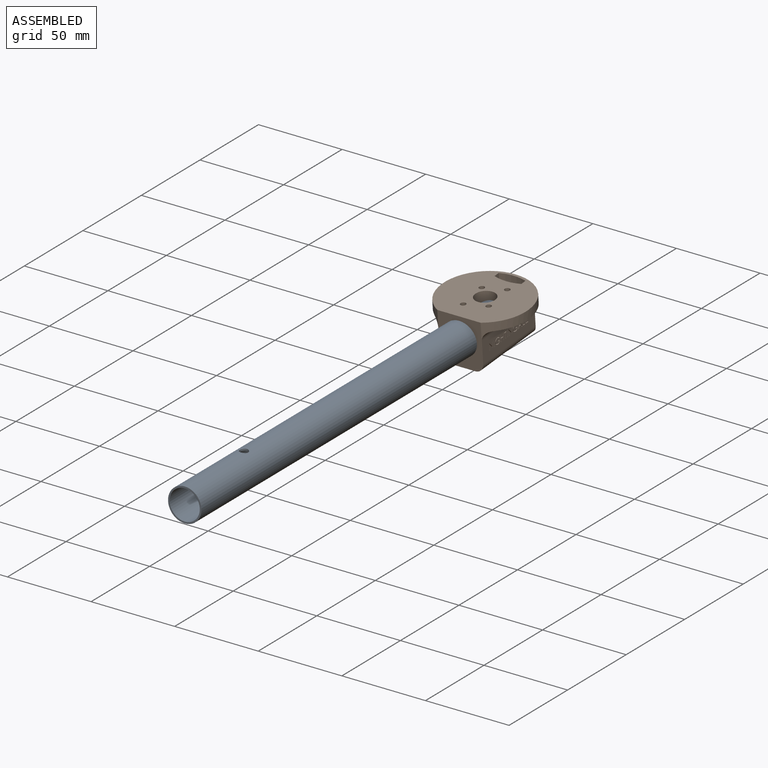
[diagram: assembled view]
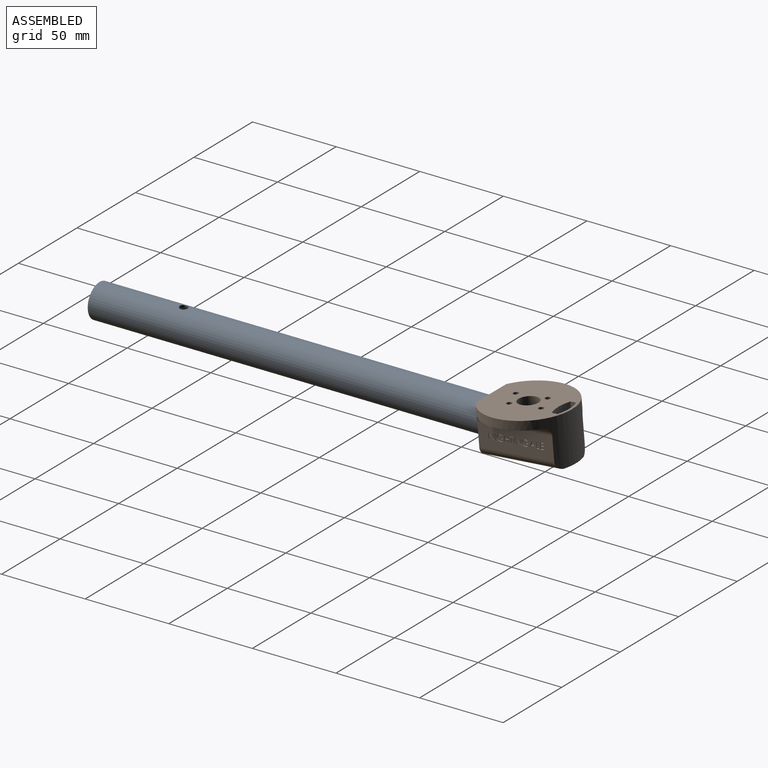
[diagram: assembled view, second angle]
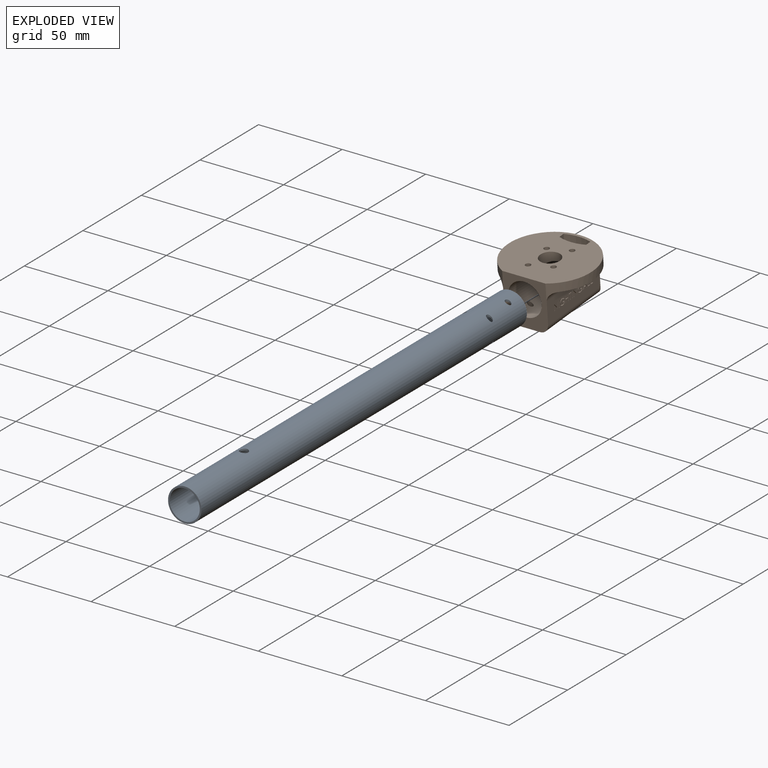
[diagram: exploded view]
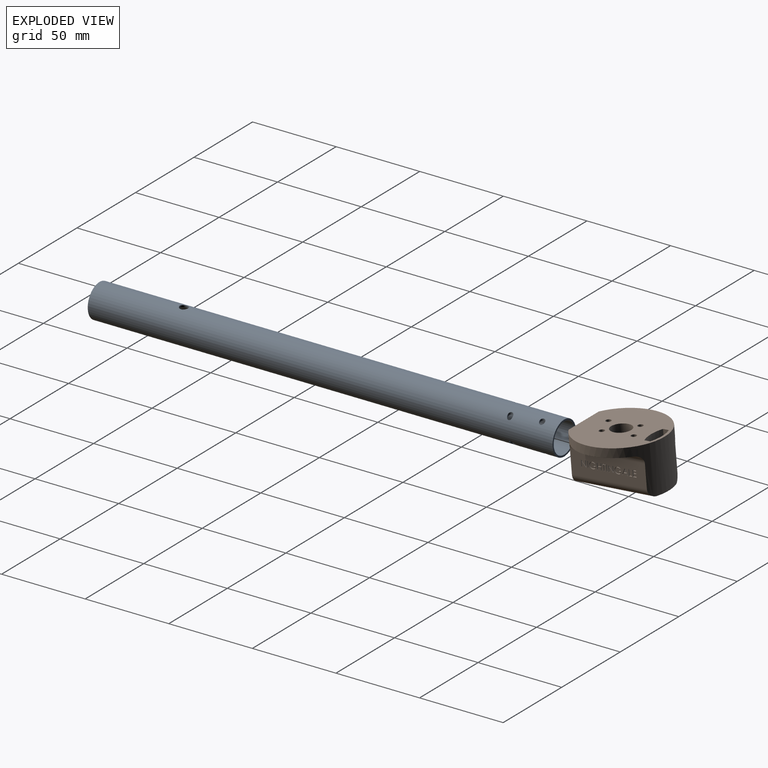
[diagram: exploded view, second angle]
ASSEMBLY  parts=2 mates=2
PART A: 14 faces, bbox 20x278x20 mm
  f0: cylinder r=9mm len=278mm, axis (0,1,0), area 15588.1mm2, adj f2,f3,f4,f5,f6,f7,f8,f9
  f1: cylinder r=10mm len=278mm, axis (0,1,0), area 17344.2mm2, adj f2,f3,f4,f5,f6,f7,f8,f9
  f2: plane 20x20mm, normal (0,-1,0), area 59.7mm2, adj f0,f1
  f3: plane 20x20mm, normal (0,1,0), area 59.7mm2, adj f0,f1
  f4: cylinder r=2.5mm len=5mm, axis (0,0,1), area 16mm2, adj f0,f1
  f5: cylinder r=2.5mm len=5mm, axis (0,0,1), area 16mm2, adj f0,f1
  f6: cylinder r=1.6mm len=3.8mm, axis (0,-0.09,1), area 12.5mm2, adj f0,f1
  f7: cylinder r=1.6mm len=3.8mm, axis (0,-0.09,1), area 12.5mm2, adj f0,f1
  f8: cylinder r=1.6mm len=3.8mm, axis (0,-0.09,1), area 12.5mm2, adj f0,f1
  f9: cylinder r=1.6mm len=3.8mm, axis (0,-0.09,1), area 12.5mm2, adj f0,f1
  f10: cylinder r=1.6mm len=5.62mm, axis (0,-0.09,1), area 15.7mm2, adj f0,f1
  f11: cylinder r=1.6mm len=5.62mm, axis (0,-0.09,1), area 15.7mm2, adj f0,f1
  f12: cylinder r=1.6mm len=5.61mm, axis (0,-0.09,1), area 15.7mm2, adj f0,f1
  f13: cylinder r=1.6mm len=5.62mm, axis (0,-0.09,1), area 15.7mm2, adj f0,f1
PART B: 270 faces, bbox 53.5x30.1x51.4 mm
  f0: cylinder r=1.6mm len=3.2mm, axis (0,1,0), area 27.3mm2, adj f266,f269
  f1: cylinder r=1.6mm len=4.7mm, axis (0,1,0), area 47.2mm2, adj f264,f269
  f2: cylinder r=1.6mm len=6.06mm, axis (0,1,0), area 43.3mm2, adj f262,f269
  f3: cylinder r=1.6mm len=7.25mm, axis (0,1,0), area 55.3mm2, adj f260,f269
  f4: cylinder r=1.6mm len=6.84mm, axis (0,1,0), area 68.8mm2, adj f9,f269
  f5: cylinder r=1.6mm len=4.86mm, axis (0,1,0), area 48.8mm2, adj f9,f269
  f6: cylinder r=1.6mm len=9.67mm, axis (0,1,0), area 79.7mm2, adj f9,f269
  f7: cylinder r=1.6mm len=7.99mm, axis (0,1,0), area 66.8mm2, adj f9,f269
  f8: plane 30.07x27.35mm, normal (0,0,1), area 414.3mm2, adj f9,f10,f12,f13,f26,f27,f269
  f9: plane 52x48.55mm, normal (0,1,0), area 1830.7mm2, adj f4,f5,f6,f7,f8,f12,f14,f15
  f10: plane 45.1x13.45mm, normal (-1,0,0), area 575mm2, adj f8,f12,f25,f27,f143,f144,f145,f146
  f11: plane 45.03x13.45mm, normal (1,0,0), area 574.1mm2, adj f12,f24,f26,f28,f29,f30,f31,f32
  f12: cylinder r=26mm len=52mm, axis (0,-1,0), area 1353.5mm2, adj f8,f9,f10,f11,f13,f20,f21,f24
  f13: plane 48.55x15.94mm, normal (0,-1,0), area 667.2mm2, adj f8,f12,f26,f27,f261,f263,f265,f267
  f14: plane 22.41x5.66mm, normal (1,0,0), area 73.5mm2, adj f9,f15,f17,f22,f23,f259,f268,f269
  f15: cylinder r=24.4mm len=21.8mm, axis (0,1,0), area 355.4mm2, adj f9,f14,f16,f17
  f16: plane 22.41x5.66mm, normal (-1,0,0), area 73.5mm2, adj f9,f15,f17,f22,f23,f259,f268,f269
  f17: plane 16x4.9mm, normal (0,1,0), area 34.6mm2, adj f14,f15,f16,f18,f19,f268
  f18: cylinder r=9.87mm len=14.68mm, axis (0,0,1), area 41.4mm2, adj f17,f19,f268
  f19: plane 14.68x3.27mm, normal (0,0,1), area 33.2mm2, adj f17,f18
  f20: plane 37.64x8.06mm, normal (0,-1,0), area 209.5mm2, adj f12,f25
  f21: plane 37.52x8mm, normal (0,-1,0), area 207.2mm2, adj f12,f24
  f22: cylinder r=22.53mm len=16mm, axis (0,1,0), area 117.6mm2, adj f9,f14,f16,f23
  f23: bspline ~17.67x4.53mm, area 23mm2, adj f14,f16,f22,f259
  f24: cylinder r=5mm len=45.03mm, axis (0,0,-1), area 324.2mm2, adj f11,f12,f21
  f25: cylinder r=5mm len=45.1mm, axis (0,0,-1), area 324.9mm2, adj f10,f12,f20
  f26: cylinder r=5mm len=47.29mm, axis (0,0,1), area 354.4mm2, adj f8,f11,f12,f13,f261,f267
  f27: cylinder r=5mm len=47.31mm, axis (0,0,-1), area 354.1mm2, adj f8,f10,f12,f13,f263,f265
  f28: plane 1x0.33mm, normal (0,1,0), area 0.3mm2, adj f11,f29,f37,f38
  f29: plane 3.7x1mm, normal (0,0,-1), area 3.7mm2, adj f11,f28,f30,f38
  f30: plane 1x0.07mm, normal (0,-1,0), area 0.1mm2, adj f11,f29,f31,f38
  f31: plane 2.92x2.45mm, normal (0,-0.64,0.77), area 3.8mm2, adj f11,f30,f32,f38
  f32: plane 2.92x1mm, normal (0,0,-1), area 2.9mm2, adj f11,f31,f33,f38
  f33: plane 1x0.33mm, normal (0,-1,0), area 0.3mm2, adj f11,f32,f34,f38
  f34: plane 3.7x1mm, normal (0,0,1), area 3.7mm2, adj f11,f33,f35,f38
  f35: plane 1x0.08mm, normal (0,1,0), area 0.1mm2, adj f11,f34,f36,f38
  f36: plane 2.91x2.44mm, normal (0,0.64,-0.77), area 3.8mm2, adj f11,f35,f37,f38
  f37: plane 2.91x1mm, normal (0,0,1), area 2.9mm2, adj f11,f28,f36,f38
  f38: plane 3.7x2.85mm, normal (1,0,0), area 3.4mm2, adj f28,f29,f30,f31,f32,f33,f34,f35
  f39: plane 3.7x1mm, normal (0,0,-1), area 3.7mm2, adj f11,f40,f42,f43
  f40: plane 1x0.33mm, normal (0,-1,0), area 0.3mm2, adj f11,f39,f41,f43
  f41: plane 3.7x1mm, normal (0,0,1), area 3.7mm2, adj f11,f40,f42,f43
  f42: plane 1x0.33mm, normal (0,1,0), area 0.3mm2, adj f11,f39,f41,f43
  f43: plane 3.7x0.33mm, normal (1,0,0), area 1.2mm2, adj f39,f40,f41,f42
  f44: extruded ~1.66x1mm, area 1.9mm2, adj f11,f45,f56,f57
  f45: plane 1x0.29mm, normal (0,0.73,0.69), area 0.4mm2, adj f11,f44,f46,f57
  f46: extruded ~1.39x1mm, area 1.6mm2, adj f11,f45,f47,f57
  f47: extruded ~1.65x1.55mm, area 2.5mm2, adj f11,f46,f48,f57
  f48: extruded ~1.76x1.58mm, area 2.6mm2, adj f11,f47,f49,f57
  f49: extruded ~1.47x1.14mm, area 2mm2, adj f11,f48,f50,f57
  f50: plane 1.23x1mm, normal (0,1,0), area 1.2mm2, adj f11,f49,f51,f57
  f51: plane 1x0.38mm, normal (0,0,-1), area 0.4mm2, adj f11,f50,f52,f57
  f52: plane 1.57x1mm, normal (0,-1,0), area 1.6mm2, adj f11,f51,f53,f57
  f53: extruded ~1.9x1.84mm, area 3mm2, adj f11,f52,f54,f57
  f54: extruded ~1.61x1mm, area 1.8mm2, adj f11,f53,f55,f57
  f55: extruded ~1.25x1mm, area 1.4mm2, adj f11,f54,f56,f57
  f56: extruded ~1.99x1.95mm, area 3.1mm2, adj f11,f44,f55,f57
  f57: plane 3.89x3.89mm, normal (1,0,0), area 4.2mm2, adj f44,f45,f46,f47,f48,f49,f50,f51
  f58: plane 3.7x1mm, normal (0,0,-1), area 3.7mm2, adj f11,f59,f69,f70
  f59: plane 1x0.33mm, normal (0,-1,0), area 0.3mm2, adj f11,f58,f60,f70
  f60: plane 1.52x1mm, normal (0,0,1), area 1.5mm2, adj f11,f59,f61,f70
  f61: plane 1.9x1mm, normal (0,-1,0), area 1.9mm2, adj f11,f60,f62,f70
  f62: plane 1.52x1mm, normal (0,0,-1), area 1.5mm2, adj f11,f61,f63,f70
  f63: plane 1x0.33mm, normal (0,-1,0), area 0.3mm2, adj f11,f62,f64,f70
  f64: plane 3.7x1mm, normal (0,0,1), area 3.7mm2, adj f11,f63,f65,f70
  f65: plane 1x0.33mm, normal (0,1,0), area 0.3mm2, adj f11,f64,f66,f70
  f66: plane 1.8x1mm, normal (0,0,-1), area 1.8mm2, adj f11,f65,f67,f70
  f67: plane 1.9x1mm, normal (0,1,0), area 1.9mm2, adj f11,f66,f68,f70
  f68: plane 1.8x1mm, normal (0,0,1), area 1.8mm2, adj f11,f67,f69,f70
  f69: plane 1x0.33mm, normal (0,1,0), area 0.3mm2, adj f11,f58,f68,f70
  f70: plane 3.7x2.56mm, normal (1,0,0), area 3.2mm2, adj f58,f59,f60,f61,f62,f63,f64,f65
  f71: plane 1x0.81mm, normal (0,1,0), area 0.8mm2, adj f11,f72,f78,f79
  f72: plane 1x0.38mm, normal (0,0,-1), area 0.4mm2, adj f11,f71,f73,f79
  f73: plane 1.95x1mm, normal (0,-1,0), area 1.9mm2, adj f11,f72,f74,f79
  f74: plane 1x0.38mm, normal (0,0,1), area 0.4mm2, adj f11,f73,f75,f79
  f75: plane 1x0.81mm, normal (0,1,0), area 0.8mm2, adj f11,f74,f76,f79
  f76: plane 3.32x1mm, normal (0,0,1), area 3.3mm2, adj f11,f75,f77,f79
  f77: plane 1x0.33mm, normal (0,1,0), area 0.3mm2, adj f11,f76,f78,f79
  f78: plane 3.32x1mm, normal (0,0,-1), area 3.3mm2, adj f11,f71,f77,f79
  f79: plane 3.7x1.95mm, normal (1,0,0), area 1.8mm2, adj f71,f72,f73,f74,f75,f76,f77,f78
  f80: plane 3.7x1mm, normal (0,0,-1), area 3.7mm2, adj f11,f81,f83,f84
  f81: plane 1x0.33mm, normal (0,-1,0), area 0.3mm2, adj f11,f80,f82,f84
  f82: plane 3.7x1mm, normal (0,0,1), area 3.7mm2, adj f11,f81,f83,f84
  f83: plane 1x0.33mm, normal (0,1,0), area 0.3mm2, adj f11,f80,f82,f84
  f84: plane 3.7x0.33mm, normal (1,0,0), area 1.2mm2, adj f80,f81,f82,f83
  f85: plane 1x0.33mm, normal (0,1,0), area 0.3mm2, adj f11,f86,f94,f95
  f86: plane 3.7x1mm, normal (0,0,-1), area 3.7mm2, adj f11,f85,f87,f95
  f87: plane 1x0.07mm, normal (0,-1,0), area 0.1mm2, adj f11,f86,f88,f95
  f88: plane 2.92x2.45mm, normal (0,-0.64,0.77), area 3.8mm2, adj f11,f87,f89,f95
  f89: plane 2.92x1mm, normal (0,0,-1), area 2.9mm2, adj f11,f88,f90,f95
  f90: plane 1x0.33mm, normal (0,-1,0), area 0.3mm2, adj f11,f89,f91,f95
  f91: plane 3.7x1mm, normal (0,0,1), area 3.7mm2, adj f11,f90,f92,f95
  f92: plane 1x0.08mm, normal (0,1,0), area 0.1mm2, adj f11,f91,f93,f95
  f93: plane 2.91x2.44mm, normal (0,0.64,-0.77), area 3.8mm2, adj f11,f92,f94,f95
  f94: plane 2.91x1mm, normal (0,0,1), area 2.9mm2, adj f11,f85,f93,f95
  f95: plane 3.7x2.85mm, normal (1,0,0), area 3.4mm2, adj f85,f86,f87,f88,f89,f90,f91,f92
  f96: extruded ~1.66x1mm, area 1.9mm2, adj f11,f97,f108,f109
  f97: plane 1x0.29mm, normal (0,0.73,0.69), area 0.4mm2, adj f11,f96,f98,f109
  f98: extruded ~1.39x1mm, area 1.6mm2, adj f11,f97,f99,f109
  f99: extruded ~1.65x1.55mm, area 2.5mm2, adj f11,f98,f100,f109
  f100: extruded ~1.76x1.58mm, area 2.6mm2, adj f11,f99,f101,f109
  f101: extruded ~1.47x1.14mm, area 2mm2, adj f11,f100,f102,f109
  f102: plane 1.23x1mm, normal (0,1,0), area 1.2mm2, adj f11,f101,f103,f109
  f103: plane 1x0.38mm, normal (0,0,-1), area 0.4mm2, adj f11,f102,f104,f109
  f104: plane 1.57x1mm, normal (0,-1,0), area 1.6mm2, adj f11,f103,f105,f109
  f105: extruded ~1.9x1.84mm, area 3mm2, adj f11,f104,f106,f109
  f106: extruded ~1.61x1mm, area 1.8mm2, adj f11,f105,f107,f109
  f107: extruded ~1.25x1mm, area 1.4mm2, adj f11,f106,f108,f109
  f108: extruded ~1.99x1.95mm, area 3.1mm2, adj f11,f96,f107,f109
  f109: plane 3.89x3.89mm, normal (1,0,0), area 4.2mm2, adj f96,f97,f98,f99,f100,f101,f102,f103
  f110: plane 1x0.05mm, normal (0,-1,0), area 0mm2, adj f11,f111,f117,f118
  f111: plane 3.7x1.71mm, normal (0,-0.42,0.91), area 4.1mm2, adj f11,f110,f112,f118
  f112: plane 1x0.36mm, normal (0,1,0), area 0.4mm2, adj f11,f111,f113,f118
  f113: plane 1.19x1mm, normal (0,0.42,-0.91), area 1.3mm2, adj f11,f112,f114,f118
  f114: plane 1.68x1mm, normal (0,1,0), area 1.7mm2, adj f11,f113,f115,f118
  f115: plane 1.19x1mm, normal (0,0.43,0.9), area 1.3mm2, adj f11,f114,f116,f118
  f116: plane 1x0.36mm, normal (0,1,0), area 0.4mm2, adj f11,f115,f117,f118
  f117: plane 3.7x1.76mm, normal (0,-0.43,-0.9), area 4.1mm2, adj f11,f110,f116,f118
  f118: plane 3.7x3.51mm, normal (1,0,0), area 3mm2, adj f110,f111,f112,f113,f114,f115,f116,f117
  f119: plane 1.42x1mm, normal (0,0.42,-0.91), area 1.6mm2, adj f118,f120,f121,f122
  f120: plane 1.32x1mm, normal (0,-1,0), area 1.3mm2, adj f118,f119,f121,f122
  f121: plane 1.42x1mm, normal (0,0.43,0.9), area 1.6mm2, adj f118,f119,f120,f122
  f122: plane 1.42x1.32mm, normal (1,0,0), area 0.9mm2, adj f119,f120,f121
  f123: plane 3.7x1mm, normal (0,0,-1), area 3.7mm2, adj f11,f124,f128,f129
  f124: plane 1x0.33mm, normal (0,-1,0), area 0.3mm2, adj f11,f123,f125,f129
  f125: plane 3.32x1mm, normal (0,0,1), area 3.3mm2, adj f11,f124,f126,f129
  f126: plane 1.42x1mm, normal (0,-1,0), area 1.4mm2, adj f11,f125,f127,f129
  f127: plane 1x0.38mm, normal (0,0,1), area 0.4mm2, adj f11,f126,f128,f129
  f128: plane 1.76x1mm, normal (0,1,0), area 1.8mm2, adj f11,f123,f127,f129
  f129: plane 3.7x1.76mm, normal (1,0,0), area 1.8mm2, adj f123,f124,f125,f126,f127,f128
  f130: plane 3.7x1mm, normal (0,0,-1), area 3.7mm2, adj f11,f131,f141,f142
  f131: plane 2.09x1mm, normal (0,-1,0), area 2.1mm2, adj f11,f130,f132,f142
  f132: plane 1x0.38mm, normal (0,0,1), area 0.4mm2, adj f11,f131,f133,f142
  f133: plane 1.76x1mm, normal (0,1,0), area 1.8mm2, adj f11,f132,f134,f142
  f134: plane 1.14x1mm, normal (0,0,1), area 1.1mm2, adj f11,f133,f135,f142
  f135: plane 1.76x1mm, normal (0,-1,0), area 1.8mm2, adj f11,f134,f136,f142
  f136: plane 1x0.38mm, normal (0,0,1), area 0.4mm2, adj f11,f135,f137,f142
  f137: plane 1.76x1mm, normal (0,1,0), area 1.8mm2, adj f11,f136,f138,f142
  f138: plane 1.42x1mm, normal (0,0,1), area 1.4mm2, adj f11,f137,f139,f142
  f139: plane 1.76x1mm, normal (0,-1,0), area 1.8mm2, adj f11,f138,f140,f142
  f140: plane 1x0.38mm, normal (0,0,1), area 0.4mm2, adj f11,f139,f141,f142
  f141: plane 2.09x1mm, normal (0,1,0), area 2.1mm2, adj f11,f130,f140,f142
  f142: plane 3.7x2.09mm, normal (1,0,0), area 3.2mm2, adj f130,f131,f132,f133,f134,f135,f136,f137
  f143: plane 1x0.33mm, normal (0,1,0), area 0.3mm2, adj f10,f144,f152,f153
  f144: plane 3.7x1mm, normal (0,0,1), area 3.7mm2, adj f10,f143,f145,f153
  f145: plane 1x0.07mm, normal (0,-1,0), area 0.1mm2, adj f10,f144,f146,f153
  f146: plane 2.92x2.45mm, normal (0,-0.64,-0.77), area 3.8mm2, adj f10,f145,f147,f153
  f147: plane 2.92x1mm, normal (0,0,1), area 2.9mm2, adj f10,f146,f148,f153
  f148: plane 1x0.33mm, normal (0,-1,0), area 0.3mm2, adj f10,f147,f149,f153
  f149: plane 3.7x1mm, normal (0,0,-1), area 3.7mm2, adj f10,f148,f150,f153
  f150: plane 1x0.08mm, normal (0,1,0), area 0.1mm2, adj f10,f149,f151,f153
  f151: plane 2.91x2.44mm, normal (0,0.64,0.77), area 3.8mm2, adj f10,f150,f152,f153
  f152: plane 2.91x1mm, normal (0,0,-1), area 2.9mm2, adj f10,f143,f151,f153
  f153: plane 3.7x2.85mm, normal (-1,0,0), area 3.4mm2, adj f143,f144,f145,f146,f147,f148,f149,f150
  f154: plane 3.7x1mm, normal (0,0,1), area 3.7mm2, adj f10,f155,f157,f158
  f155: plane 1x0.33mm, normal (0,-1,0), area 0.3mm2, adj f10,f154,f156,f158
  f156: plane 3.7x1mm, normal (0,0,-1), area 3.7mm2, adj f10,f155,f157,f158
  f157: plane 1x0.33mm, normal (0,1,0), area 0.3mm2, adj f10,f154,f156,f158
  f158: plane 3.7x0.33mm, normal (-1,0,0), area 1.2mm2, adj f154,f155,f156,f157
  f159: extruded ~1.66x1mm, area 1.9mm2, adj f10,f160,f171,f172
  f160: plane 1x0.29mm, normal (0,0.73,-0.69), area 0.4mm2, adj f10,f159,f161,f172
  f161: extruded ~1.39x1mm, area 1.6mm2, adj f10,f160,f162,f172
  f162: extruded ~1.65x1.55mm, area 2.5mm2, adj f10,f161,f163,f172
  f163: extruded ~1.76x1.58mm, area 2.6mm2, adj f10,f162,f164,f172
  f164: extruded ~1.47x1.14mm, area 2mm2, adj f10,f163,f165,f172
  f165: plane 1.23x1mm, normal (0,1,0), area 1.2mm2, adj f10,f164,f166,f172
  f166: plane 1x0.38mm, normal (0,0,1), area 0.4mm2, adj f10,f165,f167,f172
  f167: plane 1.57x1mm, normal (0,-1,0), area 1.6mm2, adj f10,f166,f168,f172
  f168: extruded ~1.9x1.84mm, area 3mm2, adj f10,f167,f169,f172
  f169: extruded ~1.61x1mm, area 1.8mm2, adj f10,f168,f170,f172
  f170: extruded ~1.25x1mm, area 1.4mm2, adj f10,f169,f171,f172
  f171: extruded ~1.99x1.95mm, area 3.1mm2, adj f10,f159,f170,f172
  f172: plane 3.89x3.89mm, normal (-1,0,0), area 4.2mm2, adj f159,f160,f161,f162,f163,f164,f165,f166
  f173: plane 3.7x1mm, normal (0,0,1), area 3.7mm2, adj f10,f174,f184,f185
  f174: plane 1x0.33mm, normal (0,-1,0), area 0.3mm2, adj f10,f173,f175,f185
  f175: plane 1.52x1mm, normal (0,0,-1), area 1.5mm2, adj f10,f174,f176,f185
  f176: plane 1.9x1mm, normal (0,-1,0), area 1.9mm2, adj f10,f175,f177,f185
  f177: plane 1.52x1mm, normal (0,0,1), area 1.5mm2, adj f10,f176,f178,f185
  f178: plane 1x0.33mm, normal (0,-1,0), area 0.3mm2, adj f10,f177,f179,f185
  f179: plane 3.7x1mm, normal (0,0,-1), area 3.7mm2, adj f10,f178,f180,f185
  f180: plane 1x0.33mm, normal (0,1,0), area 0.3mm2, adj f10,f179,f181,f185
  f181: plane 1.8x1mm, normal (0,0,1), area 1.8mm2, adj f10,f180,f182,f185
  f182: plane 1.9x1mm, normal (0,1,0), area 1.9mm2, adj f10,f181,f183,f185
  f183: plane 1.8x1mm, normal (0,0,-1), area 1.8mm2, adj f10,f182,f184,f185
  f184: plane 1x0.33mm, normal (0,1,0), area 0.3mm2, adj f10,f173,f183,f185
  f185: plane 3.7x2.56mm, normal (-1,0,0), area 3.2mm2, adj f173,f174,f175,f176,f177,f178,f179,f180
  f186: plane 1x0.81mm, normal (0,1,0), area 0.8mm2, adj f10,f187,f193,f194
  f187: plane 1x0.38mm, normal (0,0,1), area 0.4mm2, adj f10,f186,f188,f194
  f188: plane 1.95x1mm, normal (0,-1,0), area 1.9mm2, adj f10,f187,f189,f194
  f189: plane 1x0.38mm, normal (0,0,-1), area 0.4mm2, adj f10,f188,f190,f194
  f190: plane 1x0.81mm, normal (0,1,0), area 0.8mm2, adj f10,f189,f191,f194
  f191: plane 3.32x1mm, normal (0,0,-1), area 3.3mm2, adj f10,f190,f192,f194
  f192: plane 1x0.33mm, normal (0,1,0), area 0.3mm2, adj f10,f191,f193,f194
  f193: plane 3.32x1mm, normal (0,0,1), area 3.3mm2, adj f10,f186,f192,f194
  f194: plane 3.7x1.95mm, normal (-1,0,0), area 1.8mm2, adj f186,f187,f188,f189,f190,f191,f192,f193
  f195: plane 3.7x1mm, normal (0,0,1), area 3.7mm2, adj f10,f196,f198,f199
  f196: plane 1x0.33mm, normal (0,-1,0), area 0.3mm2, adj f10,f195,f197,f199
  f197: plane 3.7x1mm, normal (0,0,-1), area 3.7mm2, adj f10,f196,f198,f199
  f198: plane 1x0.33mm, normal (0,1,0), area 0.3mm2, adj f10,f195,f197,f199
  f199: plane 3.7x0.33mm, normal (-1,0,0), area 1.2mm2, adj f195,f196,f197,f198
  f200: plane 1x0.33mm, normal (0,1,0), area 0.3mm2, adj f10,f201,f209,f210
  f201: plane 3.7x1mm, normal (0,0,1), area 3.7mm2, adj f10,f200,f202,f210
  f202: plane 1x0.07mm, normal (0,-1,0), area 0.1mm2, adj f10,f201,f203,f210
  f203: plane 2.92x2.45mm, normal (0,-0.64,-0.77), area 3.8mm2, adj f10,f202,f204,f210
  f204: plane 2.92x1mm, normal (0,0,1), area 2.9mm2, adj f10,f203,f205,f210
  f205: plane 1x0.33mm, normal (0,-1,0), area 0.3mm2, adj f10,f204,f206,f210
  f206: plane 3.7x1mm, normal (0,0,-1), area 3.7mm2, adj f10,f205,f207,f210
  f207: plane 1x0.08mm, normal (0,1,0), area 0.1mm2, adj f10,f206,f208,f210
  f208: plane 2.91x2.44mm, normal (0,0.64,0.77), area 3.8mm2, adj f10,f207,f209,f210
  f209: plane 2.91x1mm, normal (0,0,-1), area 2.9mm2, adj f10,f200,f208,f210
  f210: plane 3.7x2.85mm, normal (-1,0,0), area 3.4mm2, adj f200,f201,f202,f203,f204,f205,f206,f207
  f211: extruded ~1.66x1mm, area 1.9mm2, adj f10,f212,f223,f224
  f212: plane 1x0.29mm, normal (0,0.73,-0.69), area 0.4mm2, adj f10,f211,f213,f224
  f213: extruded ~1.39x1mm, area 1.6mm2, adj f10,f212,f214,f224
  f214: extruded ~1.65x1.55mm, area 2.5mm2, adj f10,f213,f215,f224
  f215: extruded ~1.76x1.58mm, area 2.6mm2, adj f10,f214,f216,f224
  f216: extruded ~1.47x1.14mm, area 2mm2, adj f10,f215,f217,f224
  f217: plane 1.23x1mm, normal (0,1,0), area 1.2mm2, adj f10,f216,f218,f224
  f218: plane 1x0.38mm, normal (0,0,1), area 0.4mm2, adj f10,f217,f219,f224
  f219: plane 1.57x1mm, normal (0,-1,0), area 1.6mm2, adj f10,f218,f220,f224
  f220: extruded ~1.9x1.84mm, area 3mm2, adj f10,f219,f221,f224
  f221: extruded ~1.61x1mm, area 1.8mm2, adj f10,f220,f222,f224
  f222: extruded ~1.25x1mm, area 1.4mm2, adj f10,f221,f223,f224
  f223: extruded ~1.99x1.95mm, area 3.1mm2, adj f10,f211,f222,f224
  f224: plane 3.89x3.89mm, normal (-1,0,0), area 4.2mm2, adj f211,f212,f213,f214,f215,f216,f217,f218
  f225: plane 1x0.05mm, normal (0,-1,0), area 0mm2, adj f10,f226,f232,f233
  f226: plane 3.7x1.71mm, normal (0,-0.42,-0.91), area 4.1mm2, adj f10,f225,f227,f233
  f227: plane 1x0.36mm, normal (0,1,0), area 0.4mm2, adj f10,f226,f228,f233
  f228: plane 1.19x1mm, normal (0,0.42,0.91), area 1.3mm2, adj f10,f227,f229,f233
  f229: plane 1.68x1mm, normal (0,1,0), area 1.7mm2, adj f10,f228,f230,f233
  f230: plane 1.19x1mm, normal (0,0.43,-0.9), area 1.3mm2, adj f10,f229,f231,f233
  f231: plane 1x0.36mm, normal (0,1,0), area 0.4mm2, adj f10,f230,f232,f233
  f232: plane 3.7x1.76mm, normal (0,-0.43,0.9), area 4.1mm2, adj f10,f225,f231,f233
  f233: plane 3.7x3.51mm, normal (-1,0,0), area 3mm2, adj f225,f226,f227,f228,f229,f230,f231,f232
  f234: plane 1.42x1mm, normal (0,0.42,0.91), area 1.6mm2, adj f233,f235,f236,f237
  f235: plane 1.32x1mm, normal (0,-1,0), area 1.3mm2, adj f233,f234,f236,f237
  f236: plane 1.42x1mm, normal (0,0.43,-0.9), area 1.6mm2, adj f233,f234,f235,f237
  f237: plane 1.42x1.32mm, normal (-1,0,0), area 0.9mm2, adj f234,f235,f236
  f238: plane 3.7x1mm, normal (0,0,1), area 3.7mm2, adj f10,f239,f243,f244
  f239: plane 1x0.33mm, normal (0,-1,0), area 0.3mm2, adj f10,f238,f240,f244
  f240: plane 3.32x1mm, normal (0,0,-1), area 3.3mm2, adj f10,f239,f241,f244
  f241: plane 1.42x1mm, normal (0,-1,0), area 1.4mm2, adj f10,f240,f242,f244
  f242: plane 1x0.38mm, normal (0,0,-1), area 0.4mm2, adj f10,f241,f243,f244
  f243: plane 1.76x1mm, normal (0,1,0), area 1.8mm2, adj f10,f238,f242,f244
  f244: plane 3.7x1.76mm, normal (-1,0,0), area 1.8mm2, adj f238,f239,f240,f241,f242,f243
  f245: plane 3.7x1mm, normal (0,0,1), area 3.7mm2, adj f10,f246,f256,f257
  f246: plane 2.09x1mm, normal (0,-1,0), area 2.1mm2, adj f10,f245,f247,f257
  f247: plane 1x0.38mm, normal (0,0,-1), area 0.4mm2, adj f10,f246,f248,f257
  f248: plane 1.76x1mm, normal (0,1,0), area 1.8mm2, adj f10,f247,f249,f257
  f249: plane 1.14x1mm, normal (0,0,-1), area 1.1mm2, adj f10,f248,f250,f257
  f250: plane 1.76x1mm, normal (0,-1,0), area 1.8mm2, adj f10,f249,f251,f257
  f251: plane 1x0.38mm, normal (0,0,-1), area 0.4mm2, adj f10,f250,f252,f257
  f252: plane 1.76x1mm, normal (0,1,0), area 1.8mm2, adj f10,f251,f253,f257
  f253: plane 1.42x1mm, normal (0,0,-1), area 1.4mm2, adj f10,f252,f254,f257
  f254: plane 1.76x1mm, normal (0,-1,0), area 1.8mm2, adj f10,f253,f255,f257
  f255: plane 1x0.38mm, normal (0,0,-1), area 0.4mm2, adj f10,f254,f256,f257
  f256: plane 2.09x1mm, normal (0,1,0), area 2.1mm2, adj f10,f245,f255,f257
  f257: plane 3.7x2.09mm, normal (-1,0,0), area 3.2mm2, adj f245,f246,f247,f248,f249,f250,f251,f252
  f258: cylinder r=6mm len=12mm, axis (0,1,0), area 205.4mm2, adj f9,f269
  f259: plane 16.7x5.43mm, normal (0,0,-1), area 11.2mm2, adj f14,f16,f23,f269
  f260: plane 6.1x6.1mm, normal (0,-1,0), area 21.2mm2, adj f3,f261
  f261: cylinder r=3.05mm len=6.1mm, axis (0,-1,0), area 38.3mm2, adj f13,f26,f260
  f262: plane 6.1x6.1mm, normal (0,-1,0), area 21.2mm2, adj f2,f263
  f263: cylinder r=3.05mm len=6.1mm, axis (0,-1,0), area 38.3mm2, adj f13,f27,f262
  f264: plane 6.1x6.1mm, normal (0,-1,0), area 21.2mm2, adj f1,f265
  f265: cylinder r=3.05mm len=6.1mm, axis (0,-1,0), area 38.3mm2, adj f13,f27,f264
  f266: plane 6.1x6.1mm, normal (0,-1,0), area 21.2mm2, adj f0,f267
  f267: cylinder r=3.05mm len=6.1mm, axis (0,-1,0), area 38.3mm2, adj f13,f26,f266
  f268: plane 20.57x16.51mm, normal (0,0.09,1), area 51.1mm2, adj f14,f16,f17,f18,f269
  f269: cylinder r=10mm len=44.8mm, axis (0,-0.09,-1), area 2422.5mm2, adj f0,f1,f2,f3,f4,f5,f6,f7
PLACE A t=(-101.63,60.35,-0.32)mm fixed
PLACE B rot(axis=(1,0,0),95deg) t=(-101.63,41.51,-14.35)mm
MATE slider A.f1 <-> B.f269  axis (0,1,0) through (-101.63,-78.65,-0.32)mm
MATE fastened B.f269 <-> A.f1  axis (0,-1,0) through (-101.63,60.35,-0.32)mm
